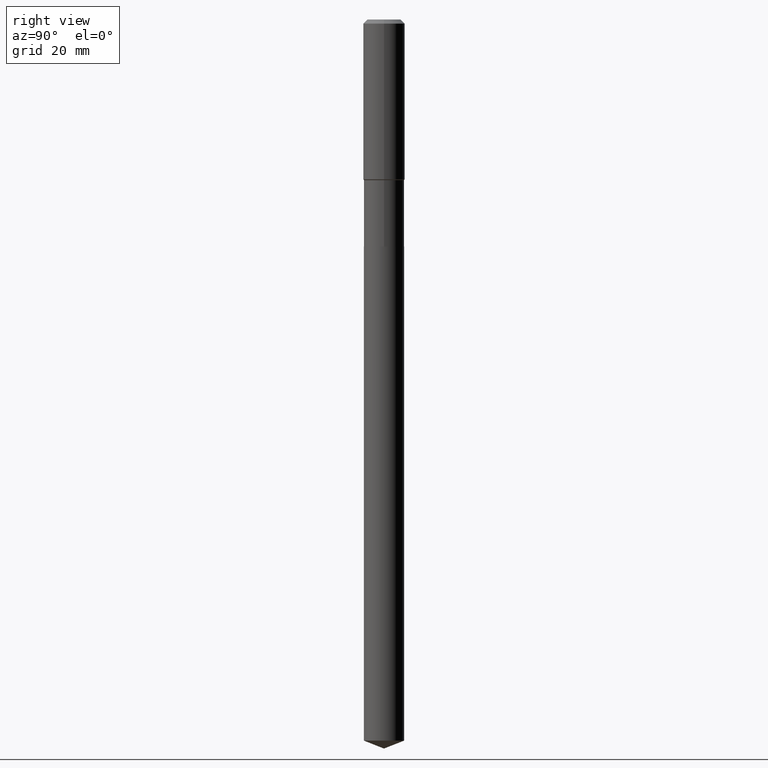
[diagram: clean part render]
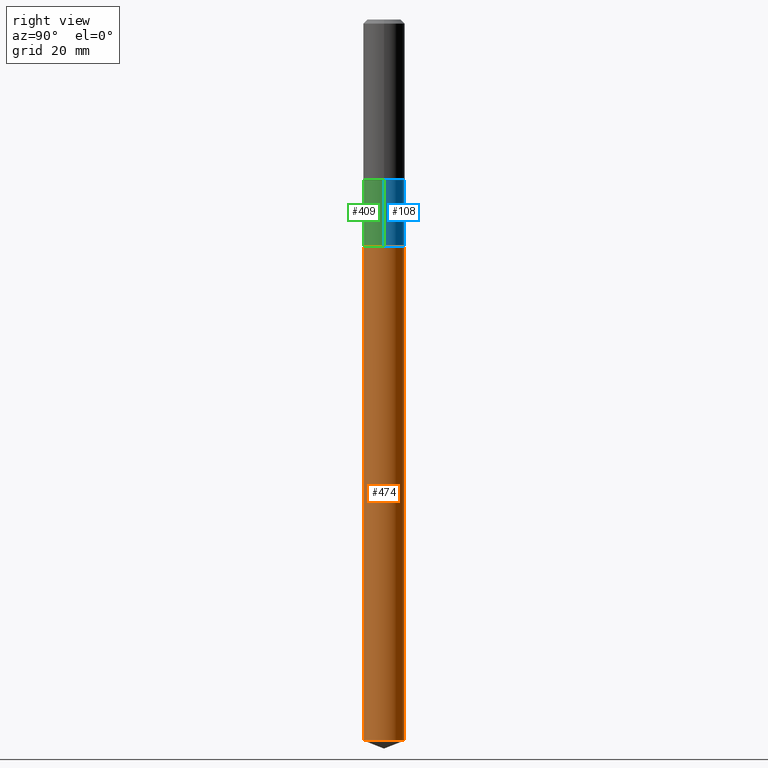
[diagram: same view with three faces highlighted in distinct colors, each labeled with its STEP entity id]
A machine part, right view with three faces highlighted in distinct colors.
Their STEP definitions:

[orange] entity #474 — the highlighted cylindrical surface (edge-blend (fillet) strip) has radius 5.8001 mm, axis along (-0, 0, 1).
#20 = VERTEX_POINT ( 'NONE', #395 ) ;
#43 = DIRECTION ( 'NONE',  ( -2.445481569686249051E-29, 3.491463060783099046E-15, 1.000000000000000000 ) ) ;
#61 = AXIS2_PLACEMENT_3D ( 'NONE', #435, #361, #89 ) ;
#89 = DIRECTION ( 'NONE',  ( -6.982962677686265922E-15, -1.000000000000000000, 2.392684907960817401E-15 ) ) ;
#104 = VECTOR ( 'NONE', #457, 39.37007874015748143 ) ;
#134 = CYLINDRICAL_SURFACE ( 'NONE', #466, 0.2283499999999999974 ) ;
#139 = DIRECTION ( 'NONE',  ( -2.445481569686249051E-29, 3.491463060783099046E-15, 1.000000000000000000 ) ) ;
#147 = CARTESIAN_POINT ( 'NONE',  ( -1.594559527449595640E-15, -0.2283500000000089902, -2.575099999999999945 ) ) ;
#149 = LINE ( 'NONE', #372, #465 ) ;
#169 = ORIENTED_EDGE ( 'NONE', *, *, #371, .T. ) ;
#193 = VERTEX_POINT ( 'NONE', #147 ) ;
#209 = FACE_OUTER_BOUND ( 'NONE', #426, .T. ) ;
#244 = EDGE_CURVE ( 'NONE', #284, #193, #149, .T. ) ;
#261 = CIRCLE ( 'NONE', #420, 0.2283499999999999974 ) ;
#267 = DIRECTION ( 'NONE',  ( -6.982962677686265922E-15, -1.000000000000000000, 4.785369815921634803E-15 ) ) ;
#273 = DIRECTION ( 'NONE',  ( -2.445481569686249051E-29, 3.491463060783099046E-15, 1.000000000000000000 ) ) ;
#280 = CARTESIAN_POINT ( 'NONE',  ( 6.297326722807346866E-29, -8.990913595654986612E-15, -2.575100000000000833 ) ) ;
#282 = EDGE_CURVE ( 'NONE', #193, #299, #487, .T. ) ;
#284 = VERTEX_POINT ( 'NONE', #453 ) ;
#299 = VERTEX_POINT ( 'NONE', #459 ) ;
#302 = ORIENTED_EDGE ( 'NONE', *, *, #244, .F. ) ;
#306 = CARTESIAN_POINT ( 'NONE',  ( 1.999923901131654645E-28, -2.855340844756166145E-14, -8.178050542893329222 ) ) ;
#310 = ORIENTED_EDGE ( 'NONE', *, *, #282, .F. ) ;
#318 = ORIENTED_EDGE ( 'NONE', *, *, #363, .T. ) ;
#361 = DIRECTION ( 'NONE',  ( -2.445481569686249051E-29, 3.491463060783099046E-15, 1.000000000000000000 ) ) ;
#363 = EDGE_CURVE ( 'NONE', #20, #299, #391, .T. ) ;
#371 = EDGE_CURVE ( 'NONE', #284, #20, #261, .T. ) ;
#372 = CARTESIAN_POINT ( 'NONE',  ( -1.594559527449595640E-15, -0.2283500000000089902, -2.575099999999999945 ) ) ;
#391 = LINE ( 'NONE', #424, #104 ) ;
#395 = CARTESIAN_POINT ( 'NONE',  ( 1.622524337108388338E-15, 0.2283499999999714092, -8.178050542893330999 ) ) ;
#420 = AXIS2_PLACEMENT_3D ( 'NONE', #306, #273, #267 ) ;
#424 = CARTESIAN_POINT ( 'NONE',  ( 1.622524337108251668E-15, 0.2283499999999910324, -2.575100000000001277 ) ) ;
#426 = EDGE_LOOP ( 'NONE', ( #169, #318, #310, #302 ) ) ;
#435 = CARTESIAN_POINT ( 'NONE',  ( 6.297326722807346866E-29, -8.990913595654986612E-15, -2.575100000000000833 ) ) ;
#453 = CARTESIAN_POINT ( 'NONE',  ( -1.594559527449458576E-15, -0.2283500000000284746, -8.178050542893329222 ) ) ;
#457 = DIRECTION ( 'NONE',  ( -2.445481569686249051E-29, 3.491463060783099046E-15, 1.000000000000000000 ) ) ;
#459 = CARTESIAN_POINT ( 'NONE',  ( 1.622524337108389718E-15, 0.2283499999999910601, -2.575100000000001277 ) ) ;
#460 = DIRECTION ( 'NONE',  ( -6.982962677686265922E-15, -1.000000000000000000, 2.392684907960817401E-15 ) ) ;
#465 = VECTOR ( 'NONE', #43, 39.37007874015748143 ) ;
#466 = AXIS2_PLACEMENT_3D ( 'NONE', #280, #139, #460 ) ;
#474 = ADVANCED_FACE ( 'NONE', ( #209 ), #134, .T. ) ;
#487 = CIRCLE ( 'NONE', #61, 0.2283499999999999974 ) ;

[blue] entity #108 — the highlighted cylindrical surface (edge-blend (fillet) strip) has radius 5.8001 mm, axis along (-0, 0, 1).
#9 = VERTEX_POINT ( 'NONE', #56 ) ;
#10 = DIRECTION ( 'NONE',  ( -2.445468806185136597E-29, 3.491481338843145583E-15, 1.000000000000000000 ) ) ;
#14 = LINE ( 'NONE', #125, #96 ) ;
#35 = CIRCLE ( 'NONE', #303, 0.2283499999999999974 ) ;
#45 = CIRCLE ( 'NONE', #220, 0.2283499999999999142 ) ;
#56 = CARTESIAN_POINT ( 'NONE',  ( -0.2283499999999999142, -6.051926219735989161E-15, -1.821500000000000119 ) ) ;
#87 = CARTESIAN_POINT ( 'NONE',  ( 6.296103988404252944E-29, -8.989167854985564319E-15, -2.574600000000000666 ) ) ;
#96 = VECTOR ( 'NONE', #272, 39.37007874015748143 ) ;
#108 = ADVANCED_FACE ( 'NONE', ( #131 ), #246, .T. ) ;
#125 = CARTESIAN_POINT ( 'NONE',  ( -0.2283499999999999697, 1.622524337108188559E-15, -1.123238827859707655E-29 ) ) ;
#131 = FACE_OUTER_BOUND ( 'NONE', #163, .T. ) ;
#140 = ORIENTED_EDGE ( 'NONE', *, *, #285, .T. ) ;
#148 = AXIS2_PLACEMENT_3D ( 'NONE', #329, #176, #488 ) ;
#151 = VERTEX_POINT ( 'NONE', #337 ) ;
#157 = DIRECTION ( 'NONE',  ( 1.000000000000000000, -6.982962677686270655E-15, 0.000000000000000000 ) ) ;
#163 = EDGE_LOOP ( 'NONE', ( #140, #231, #417, #366 ) ) ;
#176 = DIRECTION ( 'NONE',  ( -2.445468806185136597E-29, 3.491481338843145583E-15, 1.000000000000000000 ) ) ;
#180 = DIRECTION ( 'NONE',  ( -2.445468806185136877E-29, 3.491481338843145188E-15, 1.000000000000000000 ) ) ;
#220 = AXIS2_PLACEMENT_3D ( 'NONE', #229, #393, #308 ) ;
#229 = CARTESIAN_POINT ( 'NONE',  ( 4.454421430466227145E-29, -6.359733258702789937E-15, -1.821500000000000119 ) ) ;
#231 = ORIENTED_EDGE ( 'NONE', *, *, #301, .T. ) ;
#246 = CYLINDRICAL_SURFACE ( 'NONE', #148, 0.2283499999999999697 ) ;
#248 = EDGE_CURVE ( 'NONE', #468, #151, #298, .T. ) ;
#272 = DIRECTION ( 'NONE',  ( -2.445468806185136877E-29, 3.491481338843145188E-15, 1.000000000000000000 ) ) ;
#279 = CARTESIAN_POINT ( 'NONE',  ( 0.2283499999999999974, -1.058372738243522484E-14, -2.574600000000000666 ) ) ;
#285 = EDGE_CURVE ( 'NONE', #468, #343, #35, .T. ) ;
#298 = LINE ( 'NONE', #411, #406 ) ;
#301 = EDGE_CURVE ( 'NONE', #343, #9, #14, .T. ) ;
#303 = AXIS2_PLACEMENT_3D ( 'NONE', #87, #10, #157 ) ;
#308 = DIRECTION ( 'NONE',  ( 1.000000000000000000, -6.982962677686265133E-15, 0.000000000000000000 ) ) ;
#329 = CARTESIAN_POINT ( 'NONE',  ( 0.000000000000000000, 0.000000000000000000, 0.000000000000000000 ) ) ;
#337 = CARTESIAN_POINT ( 'NONE',  ( 0.2283499999999999142, -7.954292786152448094E-15, -1.821500000000000119 ) ) ;
#343 = VERTEX_POINT ( 'NONE', #482 ) ;
#366 = ORIENTED_EDGE ( 'NONE', *, *, #248, .F. ) ;
#393 = DIRECTION ( 'NONE',  ( -2.445468806185136597E-29, 3.491481338843145583E-15, 1.000000000000000000 ) ) ;
#405 = EDGE_CURVE ( 'NONE', #151, #9, #45, .T. ) ;
#406 = VECTOR ( 'NONE', #180, 39.37007874015748143 ) ;
#411 = CARTESIAN_POINT ( 'NONE',  ( 0.2283499999999999697, -1.594559527449658749E-15, 1.113474966753001794E-29 ) ) ;
#417 = ORIENTED_EDGE ( 'NONE', *, *, #405, .F. ) ;
#468 = VERTEX_POINT ( 'NONE', #279 ) ;
#482 = CARTESIAN_POINT ( 'NONE',  ( -0.2283499999999999974, -6.051926219735989161E-15, -2.574600000000000666 ) ) ;
#488 = DIRECTION ( 'NONE',  ( 1.000000000000000000, -6.982962677686266711E-15, 4.876176775795935793E-29 ) ) ;

[green] entity #409 — the highlighted cylindrical surface (edge-blend (fillet) strip) has radius 5.8001 mm, axis along (-0, 0, 1).
#9 = VERTEX_POINT ( 'NONE', #56 ) ;
#14 = LINE ( 'NONE', #125, #96 ) ;
#16 = CARTESIAN_POINT ( 'NONE',  ( 4.454421430466227145E-29, -6.359733258702789937E-15, -1.821500000000000119 ) ) ;
#56 = CARTESIAN_POINT ( 'NONE',  ( -0.2283499999999999142, -6.051926219735989161E-15, -1.821500000000000119 ) ) ;
#62 = AXIS2_PLACEMENT_3D ( 'NONE', #398, #455, #449 ) ;
#65 = CARTESIAN_POINT ( 'NONE',  ( 6.296103988404252944E-29, -8.989167854985564319E-15, -2.574600000000000666 ) ) ;
#73 = EDGE_CURVE ( 'NONE', #9, #151, #212, .T. ) ;
#90 = CIRCLE ( 'NONE', #188, 0.2283499999999999974 ) ;
#96 = VECTOR ( 'NONE', #272, 39.37007874015748143 ) ;
#107 = DIRECTION ( 'NONE',  ( 1.000000000000000000, -6.982962677686270655E-15, 0.000000000000000000 ) ) ;
#112 = AXIS2_PLACEMENT_3D ( 'NONE', #16, #129, #276 ) ;
#125 = CARTESIAN_POINT ( 'NONE',  ( -0.2283499999999999697, 1.622524337108188559E-15, -1.123238827859707655E-29 ) ) ;
#129 = DIRECTION ( 'NONE',  ( -2.445468806185136597E-29, 3.491481338843145583E-15, 1.000000000000000000 ) ) ;
#145 = ORIENTED_EDGE ( 'NONE', *, *, #458, .T. ) ;
#151 = VERTEX_POINT ( 'NONE', #337 ) ;
#180 = DIRECTION ( 'NONE',  ( -2.445468806185136877E-29, 3.491481338843145188E-15, 1.000000000000000000 ) ) ;
#188 = AXIS2_PLACEMENT_3D ( 'NONE', #65, #483, #107 ) ;
#206 = ORIENTED_EDGE ( 'NONE', *, *, #73, .F. ) ;
#212 = CIRCLE ( 'NONE', #112, 0.2283499999999999142 ) ;
#248 = EDGE_CURVE ( 'NONE', #468, #151, #298, .T. ) ;
#268 = ORIENTED_EDGE ( 'NONE', *, *, #301, .F. ) ;
#271 = FACE_OUTER_BOUND ( 'NONE', #402, .T. ) ;
#272 = DIRECTION ( 'NONE',  ( -2.445468806185136877E-29, 3.491481338843145188E-15, 1.000000000000000000 ) ) ;
#276 = DIRECTION ( 'NONE',  ( 1.000000000000000000, -6.982962677686265133E-15, 0.000000000000000000 ) ) ;
#279 = CARTESIAN_POINT ( 'NONE',  ( 0.2283499999999999974, -1.058372738243522484E-14, -2.574600000000000666 ) ) ;
#298 = LINE ( 'NONE', #411, #406 ) ;
#301 = EDGE_CURVE ( 'NONE', #343, #9, #14, .T. ) ;
#337 = CARTESIAN_POINT ( 'NONE',  ( 0.2283499999999999142, -7.954292786152448094E-15, -1.821500000000000119 ) ) ;
#343 = VERTEX_POINT ( 'NONE', #482 ) ;
#388 = CYLINDRICAL_SURFACE ( 'NONE', #62, 0.2283499999999999697 ) ;
#398 = CARTESIAN_POINT ( 'NONE',  ( 0.000000000000000000, 0.000000000000000000, 0.000000000000000000 ) ) ;
#402 = EDGE_LOOP ( 'NONE', ( #268, #145, #472, #206 ) ) ;
#406 = VECTOR ( 'NONE', #180, 39.37007874015748143 ) ;
#409 = ADVANCED_FACE ( 'NONE', ( #271 ), #388, .T. ) ;
#411 = CARTESIAN_POINT ( 'NONE',  ( 0.2283499999999999697, -1.594559527449658749E-15, 1.113474966753001794E-29 ) ) ;
#449 = DIRECTION ( 'NONE',  ( 1.000000000000000000, -6.982962677686266711E-15, 4.876176775795935793E-29 ) ) ;
#455 = DIRECTION ( 'NONE',  ( -2.445468806185136597E-29, 3.491481338843145583E-15, 1.000000000000000000 ) ) ;
#458 = EDGE_CURVE ( 'NONE', #343, #468, #90, .T. ) ;
#468 = VERTEX_POINT ( 'NONE', #279 ) ;
#472 = ORIENTED_EDGE ( 'NONE', *, *, #248, .T. ) ;
#482 = CARTESIAN_POINT ( 'NONE',  ( -0.2283499999999999974, -6.051926219735989161E-15, -2.574600000000000666 ) ) ;
#483 = DIRECTION ( 'NONE',  ( -2.445468806185136597E-29, 3.491481338843145583E-15, 1.000000000000000000 ) ) ;